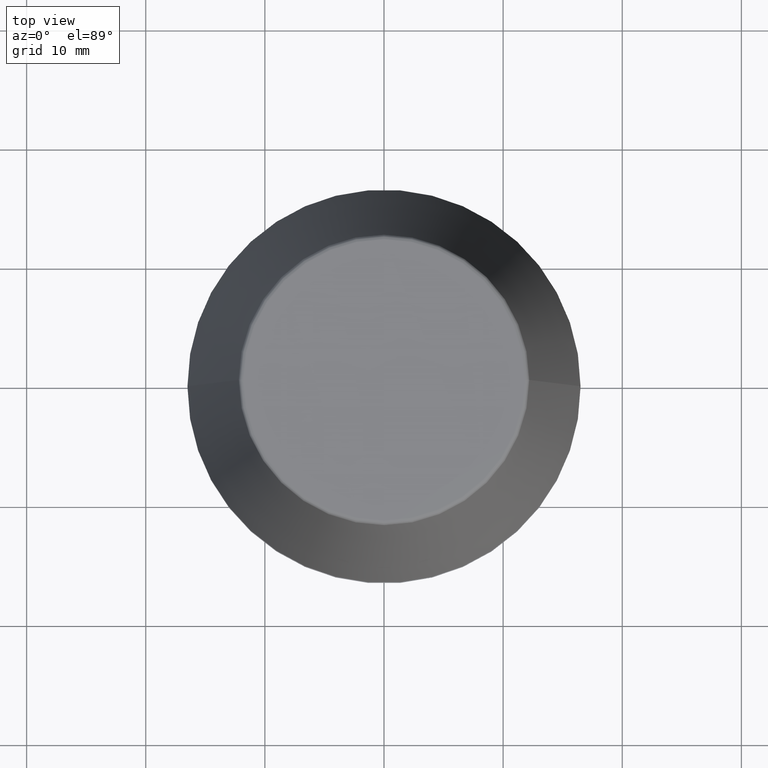
[diagram: clean part render]
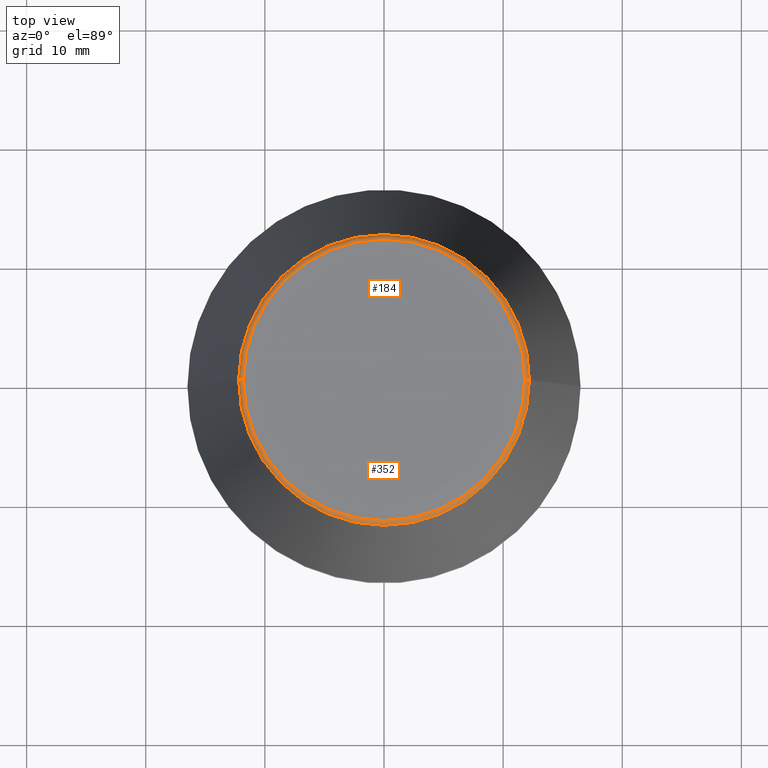
[diagram: same view with one multi-face feature highlighted, each face labeled with its STEP entity id]
A machine part, top view. The highlighted faces form ONE feature: a constant-radius fillet chain: 2 tangent blend faces with common blend radius 0.4 mm. The faces share edges in the B-rep.
Their STEP definitions:
[1] entity #352 (Torus):
#12 = DIRECTION ( 'NONE',  ( -0.0000000000000000000, -0.0000000000000000000, 1.000000000000000000 ) ) ;
#33 = DIRECTION ( 'NONE',  ( 1.224646799147353200E-016, 1.000000000000000000, 0.0000000000000000000 ) ) ;
#38 = AXIS2_PLACEMENT_3D ( 'NONE', #176, #12, #364 ) ;
#48 = ORIENTED_EDGE ( 'NONE', *, *, #153, .T. ) ;
#52 = DIRECTION ( 'NONE',  ( -0.0000000000000000000, -0.0000000000000000000, 1.000000000000000000 ) ) ;
#62 = CARTESIAN_POINT ( 'NONE',  ( 11.80989888411031400, 0.0000000000000000000, 39.60000000000000100 ) ) ;
#73 = AXIS2_PLACEMENT_3D ( 'NONE', #62, #271, #156 ) ;
#81 = CARTESIAN_POINT ( 'NONE',  ( 0.0000000000000000000, 0.0000000000000000000, 39.60000000000000100 ) ) ;
#84 = AXIS2_PLACEMENT_3D ( 'NONE', #172, #142, #174 ) ;
#94 = VERTEX_POINT ( 'NONE', #159 ) ;
#102 = EDGE_LOOP ( 'NONE', ( #118, #149, #48, #339 ) ) ;
#118 = ORIENTED_EDGE ( 'NONE', *, *, #215, .F. ) ;
#122 = AXIS2_PLACEMENT_3D ( 'NONE', #81, #52, #225 ) ;
#142 = DIRECTION ( 'NONE',  ( -0.0000000000000000000, -0.0000000000000000000, 1.000000000000000000 ) ) ;
#149 = ORIENTED_EDGE ( 'NONE', *, *, #351, .T. ) ;
#153 = EDGE_CURVE ( 'NONE', #94, #280, #362, .T. ) ;
#156 = DIRECTION ( 'NONE',  ( 0.0000000000000000000, 0.0000000000000000000, -1.000000000000000000 ) ) ;
#159 = CARTESIAN_POINT ( 'NONE',  ( 12.20600611160694300, 1.757755848304969800E-015, 39.65566924038402900 ) ) ;
#172 = CARTESIAN_POINT ( 'NONE',  ( 0.0000000000000000000, 0.0000000000000000000, 39.65566924038402900 ) ) ;
#174 = DIRECTION ( 'NONE',  ( 1.000000000000000000, 0.0000000000000000000, 0.0000000000000000000 ) ) ;
#176 = CARTESIAN_POINT ( 'NONE',  ( 0.0000000000000000000, 0.0000000000000000000, 40.00000000000000700 ) ) ;
#190 = EDGE_CURVE ( 'NONE', #374, #280, #323, .T. ) ;
#194 = VERTEX_POINT ( 'NONE', #269 ) ;
#215 = EDGE_CURVE ( 'NONE', #194, #374, #331, .T. ) ;
#217 = TOROIDAL_SURFACE ( 'NONE', #122, 11.80989888411031400, 0.4000000000000026900 ) ;
#225 = DIRECTION ( 'NONE',  ( 1.000000000000000000, 0.0000000000000000000, 0.0000000000000000000 ) ) ;
#234 = DIRECTION ( 'NONE',  ( -1.000000000000000000, 1.224646799147352500E-016, 0.0000000000000000000 ) ) ;
#269 = CARTESIAN_POINT ( 'NONE',  ( -12.20600611160694300, 0.0000000000000000000, 39.65566924038402900 ) ) ;
#271 = DIRECTION ( 'NONE',  ( 0.0000000000000000000, -1.000000000000000000, 0.0000000000000000000 ) ) ;
#280 = VERTEX_POINT ( 'NONE', #347 ) ;
#289 = FACE_OUTER_BOUND ( 'NONE', #102, .T. ) ;
#296 = CARTESIAN_POINT ( 'NONE',  ( -11.80989888411031400, 1.446295486667959300E-015, 39.60000000000000100 ) ) ;
#321 = CIRCLE ( 'NONE', #84, 12.20600611160694300 ) ;
#323 = CIRCLE ( 'NONE', #38, 11.80989888411031400 ) ;
#331 = CIRCLE ( 'NONE', #363, 0.4000000000000028000 ) ;
#339 = ORIENTED_EDGE ( 'NONE', *, *, #190, .F. ) ;
#347 = CARTESIAN_POINT ( 'NONE',  ( 11.80989888411031400, 0.0000000000000000000, 40.00000000000000700 ) ) ;
#351 = EDGE_CURVE ( 'NONE', #194, #94, #321, .T. ) ;
#352 = ADVANCED_FACE ( 'NONE', ( #289 ), #217, .T. ) ;
#362 = CIRCLE ( 'NONE', #73, 0.4000000000000045200 ) ;
#363 = AXIS2_PLACEMENT_3D ( 'NONE', #296, #33, #234 ) ;
#364 = DIRECTION ( 'NONE',  ( 1.000000000000000000, 0.0000000000000000000, 0.0000000000000000000 ) ) ;
#374 = VERTEX_POINT ( 'NONE', #377 ) ;
#377 = CARTESIAN_POINT ( 'NONE',  ( -11.80989888411031400, 1.470550059081603400E-015, 40.00000000000000700 ) ) ;
[2] entity #184 (Torus):
#1 = DIRECTION ( 'NONE',  ( 1.000000000000000000, 0.0000000000000000000, 0.0000000000000000000 ) ) ;
#9 = AXIS2_PLACEMENT_3D ( 'NONE', #218, #119, #387 ) ;
#33 = DIRECTION ( 'NONE',  ( 1.224646799147353200E-016, 1.000000000000000000, 0.0000000000000000000 ) ) ;
#35 = CARTESIAN_POINT ( 'NONE',  ( 0.0000000000000000000, 0.0000000000000000000, 39.60000000000000100 ) ) ;
#37 = ORIENTED_EDGE ( 'NONE', *, *, #153, .F. ) ;
#62 = CARTESIAN_POINT ( 'NONE',  ( 11.80989888411031400, 0.0000000000000000000, 39.60000000000000100 ) ) ;
#65 = EDGE_LOOP ( 'NONE', ( #230, #235, #75, #37 ) ) ;
#73 = AXIS2_PLACEMENT_3D ( 'NONE', #62, #271, #156 ) ;
#75 = ORIENTED_EDGE ( 'NONE', *, *, #303, .F. ) ;
#79 = AXIS2_PLACEMENT_3D ( 'NONE', #35, #89, #334 ) ;
#89 = DIRECTION ( 'NONE',  ( -0.0000000000000000000, -0.0000000000000000000, 1.000000000000000000 ) ) ;
#94 = VERTEX_POINT ( 'NONE', #159 ) ;
#99 = FACE_OUTER_BOUND ( 'NONE', #65, .T. ) ;
#119 = DIRECTION ( 'NONE',  ( -0.0000000000000000000, -0.0000000000000000000, 1.000000000000000000 ) ) ;
#144 = AXIS2_PLACEMENT_3D ( 'NONE', #253, #263, #1 ) ;
#153 = EDGE_CURVE ( 'NONE', #94, #280, #362, .T. ) ;
#156 = DIRECTION ( 'NONE',  ( 0.0000000000000000000, 0.0000000000000000000, -1.000000000000000000 ) ) ;
#159 = CARTESIAN_POINT ( 'NONE',  ( 12.20600611160694300, 1.757755848304969800E-015, 39.65566924038402900 ) ) ;
#184 = ADVANCED_FACE ( 'NONE', ( #99 ), #380, .T. ) ;
#194 = VERTEX_POINT ( 'NONE', #269 ) ;
#215 = EDGE_CURVE ( 'NONE', #194, #374, #331, .T. ) ;
#218 = CARTESIAN_POINT ( 'NONE',  ( 0.0000000000000000000, 0.0000000000000000000, 40.00000000000000700 ) ) ;
#230 = ORIENTED_EDGE ( 'NONE', *, *, #375, .T. ) ;
#234 = DIRECTION ( 'NONE',  ( -1.000000000000000000, 1.224646799147352500E-016, 0.0000000000000000000 ) ) ;
#235 = ORIENTED_EDGE ( 'NONE', *, *, #215, .T. ) ;
#253 = CARTESIAN_POINT ( 'NONE',  ( 0.0000000000000000000, 0.0000000000000000000, 39.65566924038402900 ) ) ;
#257 = CIRCLE ( 'NONE', #9, 11.80989888411031400 ) ;
#263 = DIRECTION ( 'NONE',  ( -0.0000000000000000000, -0.0000000000000000000, 1.000000000000000000 ) ) ;
#269 = CARTESIAN_POINT ( 'NONE',  ( -12.20600611160694300, 0.0000000000000000000, 39.65566924038402900 ) ) ;
#271 = DIRECTION ( 'NONE',  ( 0.0000000000000000000, -1.000000000000000000, 0.0000000000000000000 ) ) ;
#280 = VERTEX_POINT ( 'NONE', #347 ) ;
#296 = CARTESIAN_POINT ( 'NONE',  ( -11.80989888411031400, 1.446295486667959300E-015, 39.60000000000000100 ) ) ;
#303 = EDGE_CURVE ( 'NONE', #280, #374, #257, .T. ) ;
#310 = CIRCLE ( 'NONE', #144, 12.20600611160694300 ) ;
#331 = CIRCLE ( 'NONE', #363, 0.4000000000000028000 ) ;
#334 = DIRECTION ( 'NONE',  ( 1.000000000000000000, 0.0000000000000000000, 0.0000000000000000000 ) ) ;
#347 = CARTESIAN_POINT ( 'NONE',  ( 11.80989888411031400, 0.0000000000000000000, 40.00000000000000700 ) ) ;
#362 = CIRCLE ( 'NONE', #73, 0.4000000000000045200 ) ;
#363 = AXIS2_PLACEMENT_3D ( 'NONE', #296, #33, #234 ) ;
#374 = VERTEX_POINT ( 'NONE', #377 ) ;
#375 = EDGE_CURVE ( 'NONE', #94, #194, #310, .T. ) ;
#377 = CARTESIAN_POINT ( 'NONE',  ( -11.80989888411031400, 1.470550059081603400E-015, 40.00000000000000700 ) ) ;
#380 = TOROIDAL_SURFACE ( 'NONE', #79, 11.80989888411031400, 0.4000000000000026900 ) ;
#387 = DIRECTION ( 'NONE',  ( 1.000000000000000000, 0.0000000000000000000, 0.0000000000000000000 ) ) ;